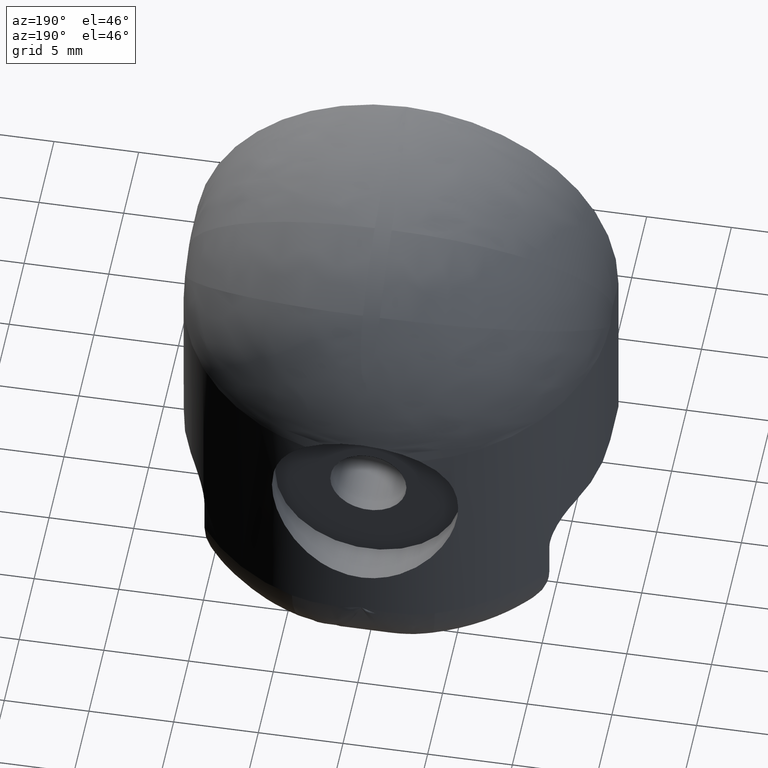
[diagram: clean part render]
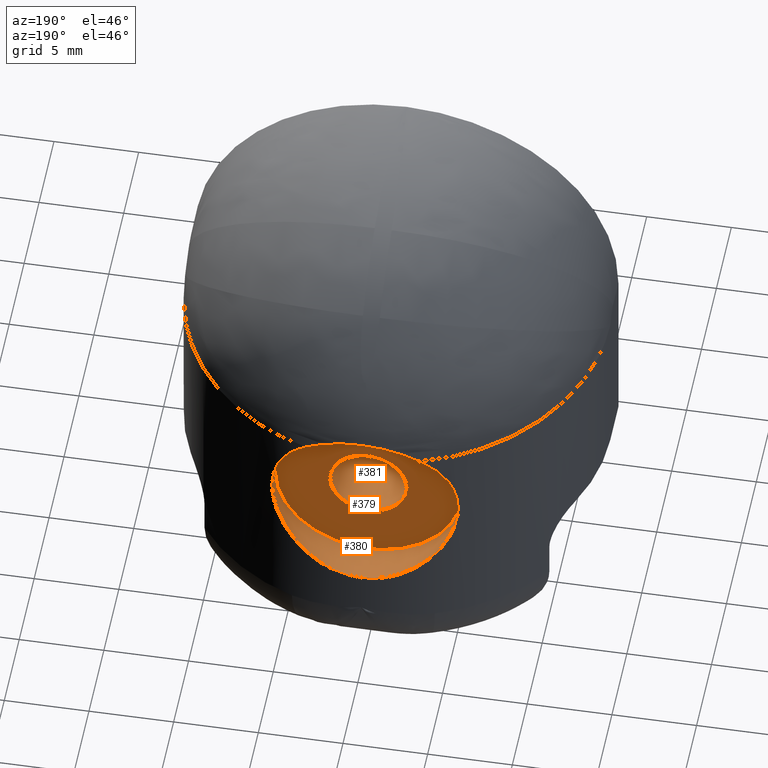
[diagram: same view with one multi-face feature highlighted, each face labeled with its STEP entity id]
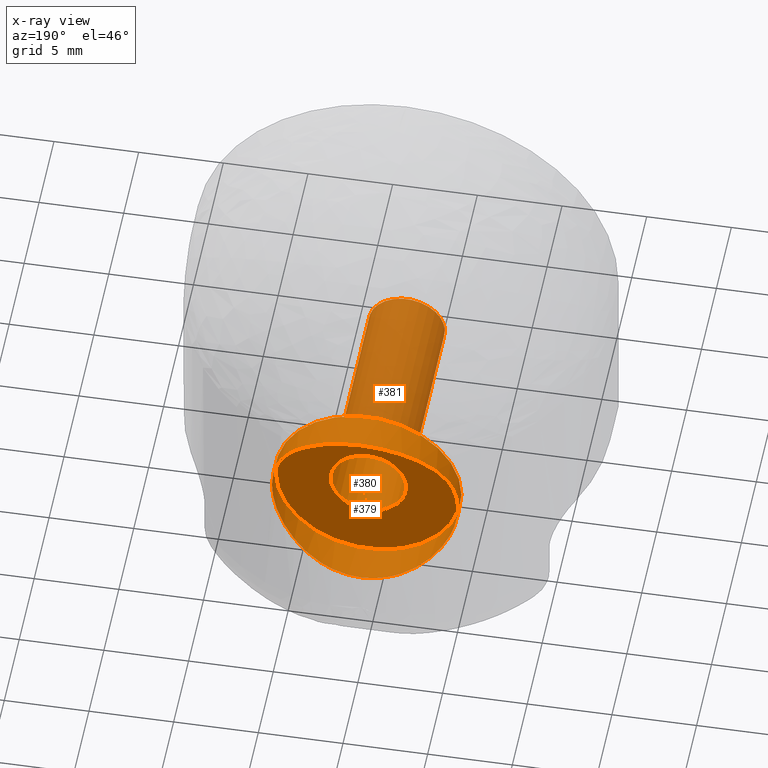
[diagram: x-ray of the same camera — body ghosted, the whole feature saturated]
A machine part, auxiliary view. The highlighted faces form ONE feature: a stepped (counterbored) hole: 2 coaxial cylindrical walls of radii 2.25 -> 5.5 mm joined by 1 annular planar shoulder face(s). The faces share edges in the B-rep.
The next image is the same camera in x-ray: the body ghosted and the whole hole feature saturated, so the bore chain is visible through the body.
Their STEP definitions:
[1] entity #380 (Cylinder):
#21=CYLINDRICAL_SURFACE('',#433,5.5);
#34=LINE('',#879,#51);
#51=VECTOR('',#501,5.5);
#79=FACE_OUTER_BOUND('',#104,.T.);
#104=EDGE_LOOP('',(#298,#299,#300,#301,#302,#303,#304));
#128=B_SPLINE_CURVE_WITH_KNOTS('',3,(#794,#795,#796,#797,#798,#799,#800,
#801,#802,#803,#804,#805,#806,#807,#808,#809,#810,#811,#812,#813,#814,#815,
#816,#817,#818),.UNSPECIFIED.,.F.,.F.,(4,2,2,3,2,2,2,2,2,2,2,4),(2.87314396742642,
2.94458686753081,3.15509919332385,3.3656115191169,3.57612384490995,3.786636170703,
3.99682528479957,4.20701439889613,4.41720351299269,4.62739262708926,4.83790495288231,
5.04841727867536),.UNSPECIFIED.);
#129=B_SPLINE_CURVE_WITH_KNOTS('',3,(#820,#821,#822,#823,#824,#825,#826,
#827),.UNSPECIFIED.,.F.,.F.,(4,2,2,4),(5.04841727867536,5.2589296044684,
5.46944193026145,5.54088483036573),.UNSPECIFIED.);
#132=B_SPLINE_CURVE_WITH_KNOTS('',3,(#859,#860,#861,#862,#863,#864,#865,
#866,#867,#868,#869,#870,#871,#872,#873,#874,#875,#876,#877,#878),
 .UNSPECIFIED.,.F.,.F.,(4,2,2,2,2,2,2,2,2,4),(-0.728876789548664,-0.565301202339906,
-0.459023419868751,-0.40685187926993,-0.377897681021136,-0.353836698865032,
-0.326001683528134,-0.278600268684722,-0.136689364270618,0.),
 .UNSPECIFIED.);
#146=CIRCLE('',#430,5.5);
#147=CIRCLE('',#431,5.5);
#174=VERTEX_POINT('',#743);
#175=VERTEX_POINT('',#793);
#176=VERTEX_POINT('',#819);
#180=VERTEX_POINT('',#852);
#181=VERTEX_POINT('',#853);
#216=EDGE_CURVE('',#174,#175,#128,.T.);
#217=EDGE_CURVE('',#175,#176,#129,.T.);
#222=EDGE_CURVE('',#180,#181,#146,.T.);
#223=EDGE_CURVE('',#181,#180,#147,.T.);
#225=EDGE_CURVE('',#176,#174,#132,.T.);
#226=EDGE_CURVE('',#175,#181,#34,.T.);
#298=ORIENTED_EDGE('',*,*,#225,.F.);
#299=ORIENTED_EDGE('',*,*,#217,.F.);
#300=ORIENTED_EDGE('',*,*,#226,.T.);
#301=ORIENTED_EDGE('',*,*,#222,.F.);
#302=ORIENTED_EDGE('',*,*,#223,.F.);
#303=ORIENTED_EDGE('',*,*,#226,.F.);
#304=ORIENTED_EDGE('',*,*,#216,.F.);
#380=ADVANCED_FACE('',(#79),#21,.F.);
#430=AXIS2_PLACEMENT_3D('',#854,#493,#494);
#431=AXIS2_PLACEMENT_3D('',#855,#495,#496);
#433=AXIS2_PLACEMENT_3D('',#858,#499,#500);
#493=DIRECTION('center_axis',(0.,1.,0.));
#494=DIRECTION('ref_axis',(-1.,0.,0.));
#495=DIRECTION('center_axis',(0.,1.,0.));
#496=DIRECTION('ref_axis',(-1.,0.,0.));
#499=DIRECTION('center_axis',(0.,1.,0.));
#500=DIRECTION('ref_axis',(-1.,0.,0.));
#501=DIRECTION('',(0.,-1.,0.));
#743=CARTESIAN_POINT('',(-3.35531667820099,13.4162561632492,1.35796397288763));
#793=CARTESIAN_POINT('',(5.5,12.5999721603218,-3.));
#794=CARTESIAN_POINT('Ctrl Pts',(-3.35531667820098,13.4162561632492,1.35796397288761));
#795=CARTESIAN_POINT('Ctrl Pts',(-3.54649700480212,13.3629834374063,1.21076896568252));
#796=CARTESIAN_POINT('Ctrl Pts',(-3.72503301434636,13.30831166622,1.05314157870566));
#797=CARTESIAN_POINT('Ctrl Pts',(-4.37248660488959,13.0963514480564,0.405687988162438));
#798=CARTESIAN_POINT('Ctrl Pts',(-4.793851651599,12.9233413214512,-0.206236015931912));
#799=CARTESIAN_POINT('Ctrl Pts',(-5.35779020102175,12.6727561066936,-1.55770830736095));
#800=CARTESIAN_POINT('Ctrl Pts',(-5.5,12.5999721603218,-2.2982922473565));
#801=CARTESIAN_POINT('Ctrl Pts',(-5.5,12.5999721603218,-3.));
#802=CARTESIAN_POINT('Ctrl Pts',(-5.5,12.5999721603218,-3.7017077526435));
#803=CARTESIAN_POINT('Ctrl Pts',(-5.35779020102175,12.6727561066936,-4.44229169263905));
#804=CARTESIAN_POINT('Ctrl Pts',(-4.793851651599,12.9233413214512,-5.79376398406809));
#805=CARTESIAN_POINT('Ctrl Pts',(-4.37248660488959,13.0963514480564,-6.40568798816244));
#806=CARTESIAN_POINT('Ctrl Pts',(-3.4064301789579,13.4126143181519,-7.37174441409412));
#807=CARTESIAN_POINT('Ctrl Pts',(-2.79423612782483,13.5779964474759,-7.79366589758848));
#808=CARTESIAN_POINT('Ctrl Pts',(-1.44166873960235,13.8105325255393,-8.35803888309281));
#809=CARTESIAN_POINT('Ctrl Pts',(-0.700630380321884,13.875,-8.5));
#810=CARTESIAN_POINT('Ctrl Pts',(0.700630380321879,13.875,-8.5));
#811=CARTESIAN_POINT('Ctrl Pts',(1.44166873960234,13.8105325255393,-8.35803888309281));
#812=CARTESIAN_POINT('Ctrl Pts',(2.79423612782483,13.5779964474759,-7.79366589758848));
#813=CARTESIAN_POINT('Ctrl Pts',(3.4064301789579,13.4126143181519,-7.37174441409412));
#814=CARTESIAN_POINT('Ctrl Pts',(4.37248660488958,13.0963514480564,-6.40568798816244));
#815=CARTESIAN_POINT('Ctrl Pts',(4.79385165159899,12.9233413214512,-5.79376398406809));
#816=CARTESIAN_POINT('Ctrl Pts',(5.35779020102175,12.6727561066936,-4.44229169263905));
#817=CARTESIAN_POINT('Ctrl Pts',(5.5,12.5999721603218,-3.7017077526435));
#818=CARTESIAN_POINT('Ctrl Pts',(5.5,12.5999721603218,-3.));
#819=CARTESIAN_POINT('',(3.35531667820209,13.4162561632488,1.35796397288732));
#820=CARTESIAN_POINT('Ctrl Pts',(5.5,12.5999721603218,-3.));
#821=CARTESIAN_POINT('Ctrl Pts',(5.5,12.5999721603218,-2.29829224735651));
#822=CARTESIAN_POINT('Ctrl Pts',(5.35779020102174,12.6727561066936,-1.55770830736095));
#823=CARTESIAN_POINT('Ctrl Pts',(4.79385165159899,12.9233413214512,-0.206236015931914));
#824=CARTESIAN_POINT('Ctrl Pts',(4.37248660488958,13.0963514480564,0.405687988162437));
#825=CARTESIAN_POINT('Ctrl Pts',(3.72503301434661,13.3083116662199,1.05314157870541));
#826=CARTESIAN_POINT('Ctrl Pts',(3.54649700480266,13.3629834374061,1.21076896568204));
#827=CARTESIAN_POINT('Ctrl Pts',(3.35531667820184,13.4162561632489,1.35796397288694));
#852=CARTESIAN_POINT('',(-5.5,11.5,-3.));
#853=CARTESIAN_POINT('',(5.5,11.5,-3.));
#854=CARTESIAN_POINT('Origin',(-2.22044604925031E-15,11.5,-3.));
#855=CARTESIAN_POINT('Origin',(-2.22044604925031E-15,11.5,-3.));
#858=CARTESIAN_POINT('Origin',(-2.22044604925031E-15,13.25,-3.));
#859=CARTESIAN_POINT('Ctrl Pts',(3.35531667820086,13.4162561632492,1.35796397288769));
#860=CARTESIAN_POINT('Ctrl Pts',(2.93342260475753,13.5338176702769,1.68279185808026));
#861=CARTESIAN_POINT('Ctrl Pts',(2.46315754091522,13.6266572614907,1.94727014913054));
#862=CARTESIAN_POINT('Ctrl Pts',(1.62918619715728,13.7368092749507,2.26491020579985));
#863=CARTESIAN_POINT('Ctrl Pts',(1.28849732422677,13.7688367452532,2.35861358491467));
#864=CARTESIAN_POINT('Ctrl Pts',(0.769217000710376,13.7995347937545,2.44870804347468));
#865=CARTESIAN_POINT('Ctrl Pts',(0.596803737178394,13.8068589756314,2.47028524585735));
#866=CARTESIAN_POINT('Ctrl Pts',(0.327400022094928,13.8139182267961,2.49109365319527));
#867=CARTESIAN_POINT('Ctrl Pts',(0.231053096886031,13.815578054839,2.49599130723256));
#868=CARTESIAN_POINT('Ctrl Pts',(0.0544738330195558,13.8170432003336,2.50031444314462));
#869=CARTESIAN_POINT('Ctrl Pts',(-0.0257017746818228,13.8171142454593,2.50052415314626));
#870=CARTESIAN_POINT('Ctrl Pts',(-0.198575381057974,13.8159864998117,2.49719642288105));
#871=CARTESIAN_POINT('Ctrl Pts',(-0.291227862968587,13.8145870677115,2.49306677394873));
#872=CARTESIAN_POINT('Ctrl Pts',(-0.541223102151156,13.8086568140287,2.47558277983116));
#873=CARTESIAN_POINT('Ctrl Pts',(-0.69810066967334,13.8026208608989,2.45779528260516));
#874=CARTESIAN_POINT('Ctrl Pts',(-1.32034533297342,13.7693315595169,2.36000285441877));
#875=CARTESIAN_POINT('Ctrl Pts',(-1.77357619522018,13.7240208281465,2.22721712739829));
#876=CARTESIAN_POINT('Ctrl Pts',(-2.6161194116529,13.5955552979013,1.8589550638584));
#877=CARTESIAN_POINT('Ctrl Pts',(-3.00278459770951,13.5144898319991,1.62938814633944));
#878=CARTESIAN_POINT('Ctrl Pts',(-3.35531667820088,13.4162561632492,1.35796397288768));
#879=CARTESIAN_POINT('',(5.5,13.25,-3.));
[2] entity #381 (Cylinder):
#22=CYLINDRICAL_SURFACE('',#434,2.25);
#35=LINE('',#882,#52);
#52=VECTOR('',#504,2.25);
#80=FACE_OUTER_BOUND('',#105,.T.);
#105=EDGE_LOOP('',(#305,#306,#307,#308));
#148=CIRCLE('',#432,2.25);
#149=CIRCLE('',#435,2.25);
#182=VERTEX_POINT('',#856);
#183=VERTEX_POINT('',#881);
#224=EDGE_CURVE('',#182,#182,#148,.T.);
#227=EDGE_CURVE('',#182,#183,#35,.T.);
#228=EDGE_CURVE('',#183,#183,#149,.T.);
#305=ORIENTED_EDGE('',*,*,#224,.T.);
#306=ORIENTED_EDGE('',*,*,#227,.T.);
#307=ORIENTED_EDGE('',*,*,#228,.F.);
#308=ORIENTED_EDGE('',*,*,#227,.F.);
#381=ADVANCED_FACE('',(#80),#22,.F.);
#432=AXIS2_PLACEMENT_3D('',#857,#497,#498);
#434=AXIS2_PLACEMENT_3D('',#880,#502,#503);
#435=AXIS2_PLACEMENT_3D('',#883,#505,#506);
#497=DIRECTION('center_axis',(0.,1.,0.));
#498=DIRECTION('ref_axis',(-1.,0.,0.));
#502=DIRECTION('center_axis',(0.,1.,0.));
#503=DIRECTION('ref_axis',(-1.,0.,0.));
#504=DIRECTION('',(0.,-1.,0.));
#505=DIRECTION('center_axis',(-1.11022302462516E-17,1.,0.));
#506=DIRECTION('ref_axis',(-1.,0.,0.));
#856=CARTESIAN_POINT('',(2.25,11.5,-3.));
#857=CARTESIAN_POINT('Origin',(-2.22044604925031E-15,11.5,-3.));
#880=CARTESIAN_POINT('Origin',(-2.22044604925031E-15,-27.9743420051907,
-3.));
#881=CARTESIAN_POINT('',(2.25,-1.37500000000001,-3.));
#882=CARTESIAN_POINT('',(2.25,-27.9743420051907,-3.));
#883=CARTESIAN_POINT('Origin',(-2.22044604925031E-15,-1.37500000000001,
-3.));
[3] entity #379 (Plane):
#17=FACE_BOUND('',#103,.T.);
#63=PLANE('',#429);
#78=FACE_OUTER_BOUND('',#102,.T.);
#102=EDGE_LOOP('',(#295,#296));
#103=EDGE_LOOP('',(#297));
#146=CIRCLE('',#430,5.5);
#147=CIRCLE('',#431,5.5);
#148=CIRCLE('',#432,2.25);
#180=VERTEX_POINT('',#852);
#181=VERTEX_POINT('',#853);
#182=VERTEX_POINT('',#856);
#222=EDGE_CURVE('',#180,#181,#146,.T.);
#223=EDGE_CURVE('',#181,#180,#147,.T.);
#224=EDGE_CURVE('',#182,#182,#148,.T.);
#295=ORIENTED_EDGE('',*,*,#222,.T.);
#296=ORIENTED_EDGE('',*,*,#223,.T.);
#297=ORIENTED_EDGE('',*,*,#224,.F.);
#379=ADVANCED_FACE('',(#78,#17),#63,.T.);
#429=AXIS2_PLACEMENT_3D('',#851,#491,#492);
#430=AXIS2_PLACEMENT_3D('',#854,#493,#494);
#431=AXIS2_PLACEMENT_3D('',#855,#495,#496);
#432=AXIS2_PLACEMENT_3D('',#857,#497,#498);
#491=DIRECTION('center_axis',(0.,1.,0.));
#492=DIRECTION('ref_axis',(-1.,0.,0.));
#493=DIRECTION('center_axis',(0.,1.,0.));
#494=DIRECTION('ref_axis',(-1.,0.,0.));
#495=DIRECTION('center_axis',(0.,1.,0.));
#496=DIRECTION('ref_axis',(-1.,0.,0.));
#497=DIRECTION('center_axis',(0.,1.,0.));
#498=DIRECTION('ref_axis',(-1.,0.,0.));
#851=CARTESIAN_POINT('Origin',(-2.22044604925031E-15,11.5,-3.));
#852=CARTESIAN_POINT('',(-5.5,11.5,-3.));
#853=CARTESIAN_POINT('',(5.5,11.5,-3.));
#854=CARTESIAN_POINT('Origin',(-2.22044604925031E-15,11.5,-3.));
#855=CARTESIAN_POINT('Origin',(-2.22044604925031E-15,11.5,-3.));
#856=CARTESIAN_POINT('',(2.25,11.5,-3.));
#857=CARTESIAN_POINT('Origin',(-2.22044604925031E-15,11.5,-3.));